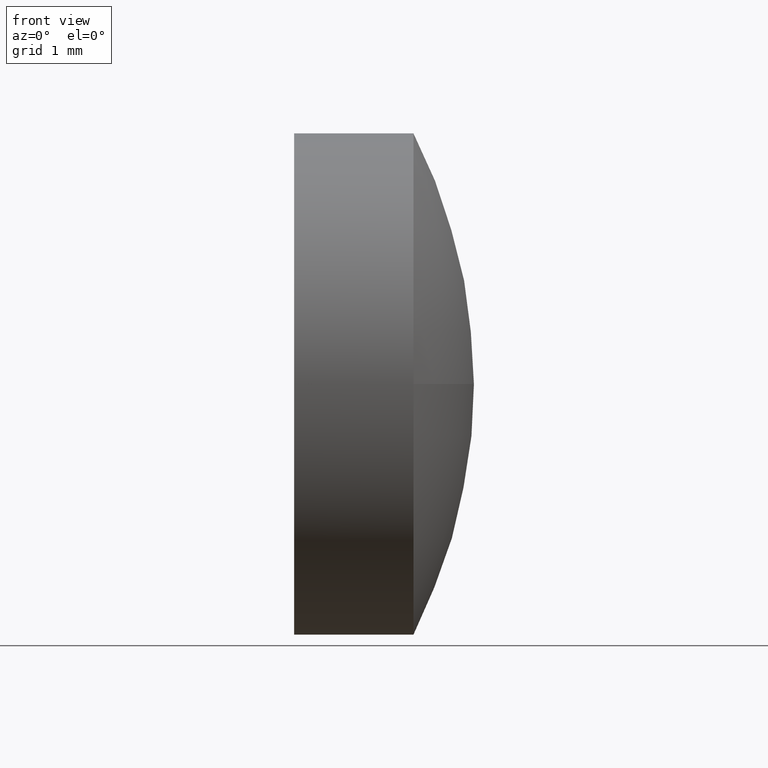
[diagram: clean part render]
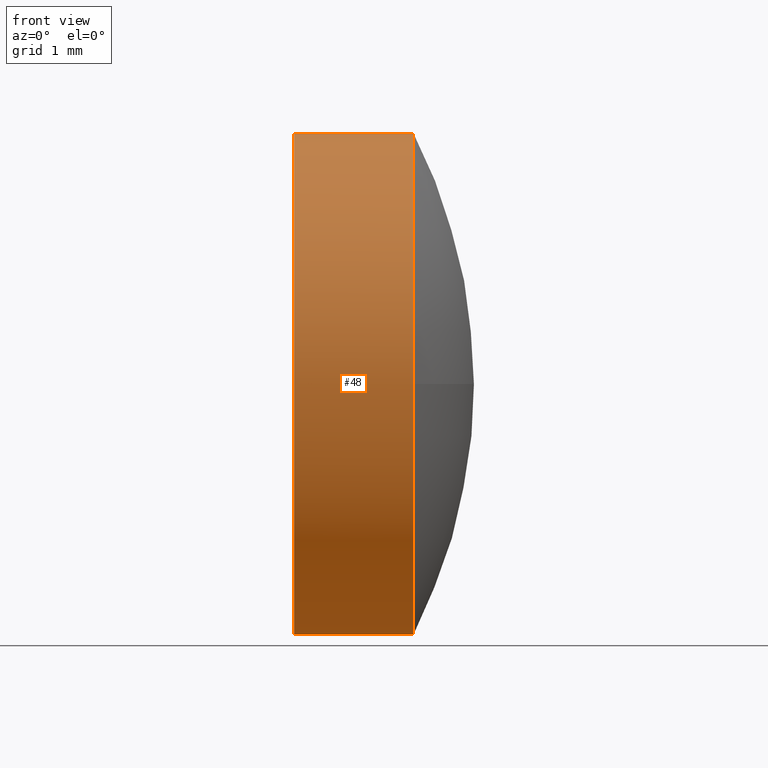
[diagram: same view with one face highlighted and labeled with its STEP entity id]
A machine part, front view. The second image highlights one B-rep face of the part: STEP entity #48.
In plain terms, the highlighted cylindrical surface (partial cylindrical patch) has radius 3.15 mm, axis along (-1, -0, -0).
Its self-contained STEP definition (entity closure, byte-faithful):
#4 = LINE ( 'NONE', #102, #105 ) ;
#11 = ORIENTED_EDGE ( 'NONE', *, *, #101, .T. ) ;
#13 = CARTESIAN_POINT ( 'NONE',  ( 402.6884556923478700, 12.44565855584187600, 0.0000000000000000000 ) ) ;
#20 = CIRCLE ( 'NONE', #113, 3.149999999999999900 ) ;
#21 = ORIENTED_EDGE ( 'NONE', *, *, #122, .T. ) ;
#25 = EDGE_CURVE ( 'NONE', #117, #123, #47, .T. ) ;
#33 = EDGE_LOOP ( 'NONE', ( #41, #11, #21, #37, #138 ) ) ;
#37 = ORIENTED_EDGE ( 'NONE', *, *, #25, .T. ) ;
#39 = DIRECTION ( 'NONE',  ( -1.000000000000000000, -0.0000000000000000000, -0.0000000000000000000 ) ) ;
#41 = ORIENTED_EDGE ( 'NONE', *, *, #90, .F. ) ;
#42 = CARTESIAN_POINT ( 'NONE',  ( 401.1884556923478700, 12.44565855584187600, 3.149999999999999900 ) ) ;
#43 = DIRECTION ( 'NONE',  ( -1.000000000000000000, -0.0000000000000000000, -0.0000000000000000000 ) ) ;
#47 = LINE ( 'NONE', #121, #93 ) ;
#48 = ADVANCED_FACE ( 'NONE', ( #71 ), #148, .T. ) ;
#51 = DIRECTION ( 'NONE',  ( -1.000000000000000000, -0.0000000000000000000, -0.0000000000000000000 ) ) ;
#54 = VERTEX_POINT ( 'NONE', #118 ) ;
#63 = CARTESIAN_POINT ( 'NONE',  ( 402.6884556923478700, 12.44565855584187600, 0.0000000000000000000 ) ) ;
#65 = DIRECTION ( 'NONE',  ( -1.000000000000000000, -0.0000000000000000000, -0.0000000000000000000 ) ) ;
#71 = FACE_OUTER_BOUND ( 'NONE', #33, .T. ) ;
#76 = DIRECTION ( 'NONE',  ( 0.0000000000000000000, 0.0000000000000000000, 1.000000000000000000 ) ) ;
#77 = CARTESIAN_POINT ( 'NONE',  ( 400.3278176035988700, 12.44565855584187600, 0.0000000000000000000 ) ) ;
#79 = CARTESIAN_POINT ( 'NONE',  ( 402.6884556923478700, 12.44565855584187600, 3.149999999999999900 ) ) ;
#89 = CIRCLE ( 'NONE', #171, 3.149999999999999900 ) ;
#90 = EDGE_CURVE ( 'NONE', #177, #167, #4, .T. ) ;
#93 = VECTOR ( 'NONE', #165, 1000.000000000000000 ) ;
#99 = AXIS2_PLACEMENT_3D ( 'NONE', #63, #65, #76 ) ;
#101 = EDGE_CURVE ( 'NONE', #177, #54, #149, .T. ) ;
#102 = CARTESIAN_POINT ( 'NONE',  ( 400.3278176035988700, 12.44565855584187600, -3.149999999999999900 ) ) ;
#105 = VECTOR ( 'NONE', #51, 1000.000000000000000 ) ;
#109 = DIRECTION ( 'NONE',  ( -1.000000000000000000, -0.0000000000000000000, -0.0000000000000000000 ) ) ;
#113 = AXIS2_PLACEMENT_3D ( 'NONE', #13, #109, #168 ) ;
#117 = VERTEX_POINT ( 'NONE', #79 ) ;
#118 = CARTESIAN_POINT ( 'NONE',  ( 402.6884556923478700, 9.295658555841898300, 0.0000000000000000000 ) ) ;
#121 = CARTESIAN_POINT ( 'NONE',  ( 400.3278176035988700, 12.44565855584187600, 3.149999999999999900 ) ) ;
#122 = EDGE_CURVE ( 'NONE', #54, #117, #20, .T. ) ;
#123 = VERTEX_POINT ( 'NONE', #42 ) ;
#127 = CARTESIAN_POINT ( 'NONE',  ( 401.1884556923478700, 12.44565855584187600, -3.149999999999999900 ) ) ;
#134 = DIRECTION ( 'NONE',  ( 0.0000000000000000000, 0.0000000000000000000, 1.000000000000000000 ) ) ;
#138 = ORIENTED_EDGE ( 'NONE', *, *, #173, .F. ) ;
#142 = DIRECTION ( 'NONE',  ( 0.0000000000000000000, 0.0000000000000000000, 1.000000000000000000 ) ) ;
#144 = CARTESIAN_POINT ( 'NONE',  ( 402.6884556923478700, 12.44565855584187600, -3.149999999999999900 ) ) ;
#148 = CYLINDRICAL_SURFACE ( 'NONE', #158, 3.149999999999999900 ) ;
#149 = CIRCLE ( 'NONE', #99, 3.149999999999999900 ) ;
#158 = AXIS2_PLACEMENT_3D ( 'NONE', #77, #39, #134 ) ;
#165 = DIRECTION ( 'NONE',  ( -1.000000000000000000, -0.0000000000000000000, -0.0000000000000000000 ) ) ;
#167 = VERTEX_POINT ( 'NONE', #127 ) ;
#168 = DIRECTION ( 'NONE',  ( 0.0000000000000000000, 0.0000000000000000000, 1.000000000000000000 ) ) ;
#170 = CARTESIAN_POINT ( 'NONE',  ( 401.1884556923478700, 12.44565855584187600, 0.0000000000000000000 ) ) ;
#171 = AXIS2_PLACEMENT_3D ( 'NONE', #170, #43, #142 ) ;
#173 = EDGE_CURVE ( 'NONE', #167, #123, #89, .T. ) ;
#177 = VERTEX_POINT ( 'NONE', #144 ) ;